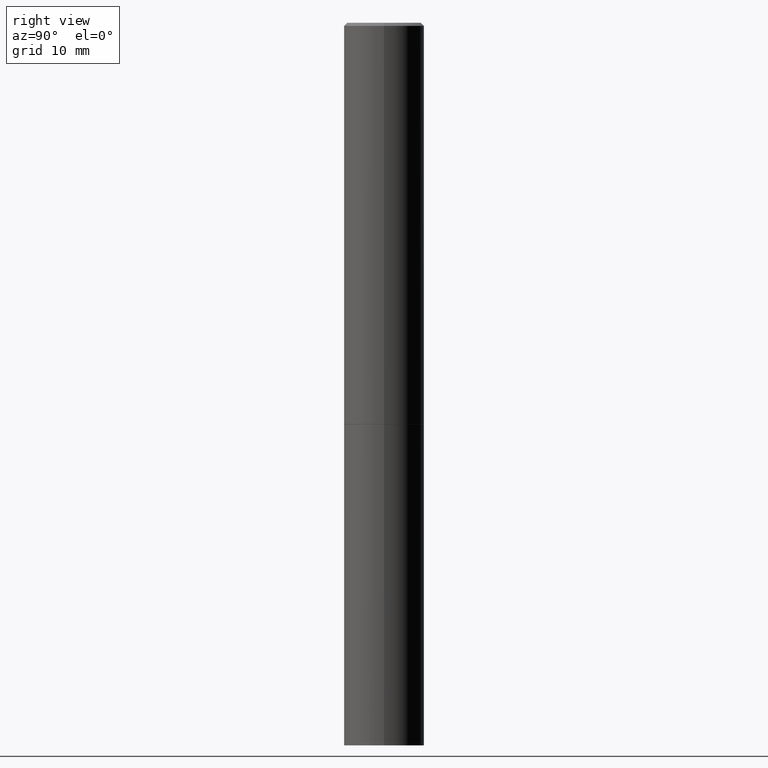
[diagram: clean part render]
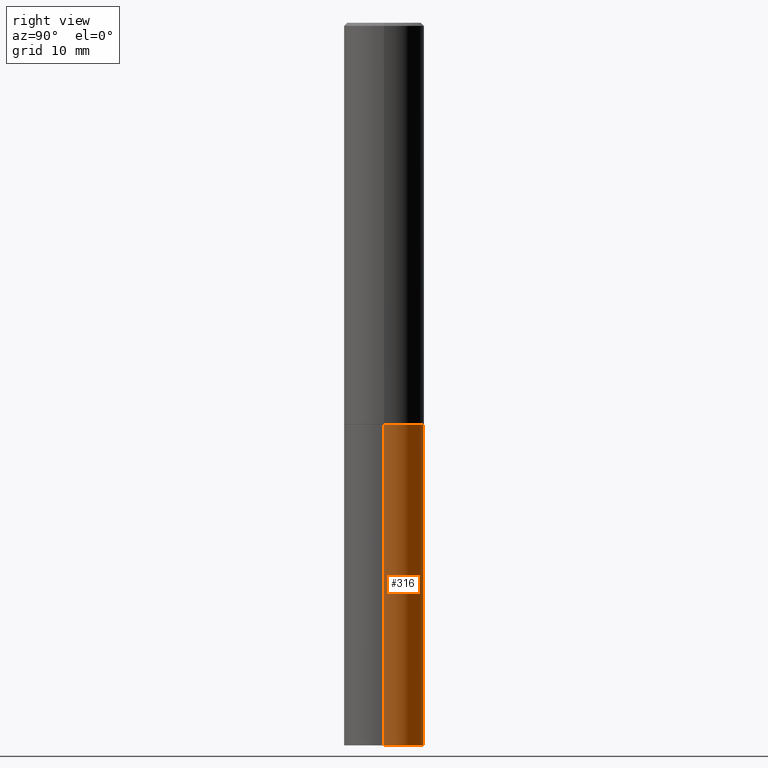
[diagram: same view with one face highlighted and labeled with its STEP entity id]
A machine part, right view. The second image highlights one B-rep face of the part: STEP entity #316.
In plain terms, the highlighted cylindrical surface (partial cylindrical patch) has radius 6.35 mm, axis along (-0, 0, 1).
Its self-contained STEP definition (entity closure, byte-faithful):
#17 = VECTOR ( 'NONE', #261, 39.37007874015748143 ) ;
#18 = ORIENTED_EDGE ( 'NONE', *, *, #300, .F. ) ;
#37 = VERTEX_POINT ( 'NONE', #146 ) ;
#41 = VECTOR ( 'NONE', #215, 39.37007874015748143 ) ;
#54 = CARTESIAN_POINT ( 'NONE',  ( -0.2499999999999998057, -1.396592535537259180E-14, -4.500000000000000000 ) ) ;
#56 = DIRECTION ( 'NONE',  ( -2.445468806185136597E-29, 3.491481338843145583E-15, 1.000000000000000000 ) ) ;
#59 = CARTESIAN_POINT ( 'NONE',  ( 1.100460962783311469E-28, -1.571166602479415690E-14, -4.500000000000000000 ) ) ;
#63 = CARTESIAN_POINT ( 'NONE',  ( -0.2500000000000000000, 1.776356839400250465E-15, -1.229733772563726445E-29 ) ) ;
#66 = AXIS2_PLACEMENT_3D ( 'NONE', #179, #56, #348 ) ;
#75 = EDGE_CURVE ( 'NONE', #248, #370, #330, .T. ) ;
#83 = CARTESIAN_POINT ( 'NONE',  ( 0.000000000000000000, 0.000000000000000000, 0.000000000000000000 ) ) ;
#89 = CARTESIAN_POINT ( 'NONE',  ( 0.2500000000000000000, -1.047444401652943162E-14, -2.500000000000000000 ) ) ;
#96 = ORIENTED_EDGE ( 'NONE', *, *, #75, .F. ) ;
#118 = CARTESIAN_POINT ( 'NONE',  ( 0.2500000000000000000, -1.745740669421566678E-15, 1.219044193948983948E-29 ) ) ;
#140 = EDGE_LOOP ( 'NONE', ( #251, #225, #18, #96 ) ) ;
#146 = CARTESIAN_POINT ( 'NONE',  ( -0.2500000000000000000, -1.044382784655076046E-14, -2.500000000000000000 ) ) ;
#179 = CARTESIAN_POINT ( 'NONE',  ( 6.113672015462842613E-29, -8.728703347107864943E-15, -2.500000000000000000 ) ) ;
#187 = DIRECTION ( 'NONE',  ( 1.000000000000000000, -6.982962677686270655E-15, 0.000000000000000000 ) ) ;
#198 = VERTEX_POINT ( 'NONE', #54 ) ;
#202 = EDGE_CURVE ( 'NONE', #198, #37, #208, .T. ) ;
#206 = DIRECTION ( 'NONE',  ( 1.000000000000000000, -6.982962677686266711E-15, 4.876176775795935793E-29 ) ) ;
#208 = LINE ( 'NONE', #63, #41 ) ;
#215 = DIRECTION ( 'NONE',  ( -2.445468806185136877E-29, 3.491481338843145188E-15, 1.000000000000000000 ) ) ;
#225 = ORIENTED_EDGE ( 'NONE', *, *, #202, .T. ) ;
#239 = CYLINDRICAL_SURFACE ( 'NONE', #357, 0.2500000000000000000 ) ;
#248 = VERTEX_POINT ( 'NONE', #358 ) ;
#251 = ORIENTED_EDGE ( 'NONE', *, *, #257, .T. ) ;
#255 = CIRCLE ( 'NONE', #66, 0.2500000000000000000 ) ;
#257 = EDGE_CURVE ( 'NONE', #248, #198, #360, .T. ) ;
#261 = DIRECTION ( 'NONE',  ( -2.445468806185136877E-29, 3.491481338843145188E-15, 1.000000000000000000 ) ) ;
#266 = FACE_OUTER_BOUND ( 'NONE', #140, .T. ) ;
#280 = AXIS2_PLACEMENT_3D ( 'NONE', #59, #299, #187 ) ;
#299 = DIRECTION ( 'NONE',  ( -2.445468806185136597E-29, 3.491481338843145583E-15, 1.000000000000000000 ) ) ;
#300 = EDGE_CURVE ( 'NONE', #370, #37, #255, .T. ) ;
#316 = ADVANCED_FACE ( 'NONE', ( #266 ), #239, .T. ) ;
#330 = LINE ( 'NONE', #118, #17 ) ;
#348 = DIRECTION ( 'NONE',  ( 1.000000000000000000, -6.982962677686266711E-15, 0.000000000000000000 ) ) ;
#357 = AXIS2_PLACEMENT_3D ( 'NONE', #83, #390, #206 ) ;
#358 = CARTESIAN_POINT ( 'NONE',  ( 0.2499999999999998057, -1.742679052423703663E-14, -4.500000000000000000 ) ) ;
#360 = CIRCLE ( 'NONE', #280, 0.2500000000000000000 ) ;
#370 = VERTEX_POINT ( 'NONE', #89 ) ;
#390 = DIRECTION ( 'NONE',  ( -2.445468806185136597E-29, 3.491481338843145583E-15, 1.000000000000000000 ) ) ;